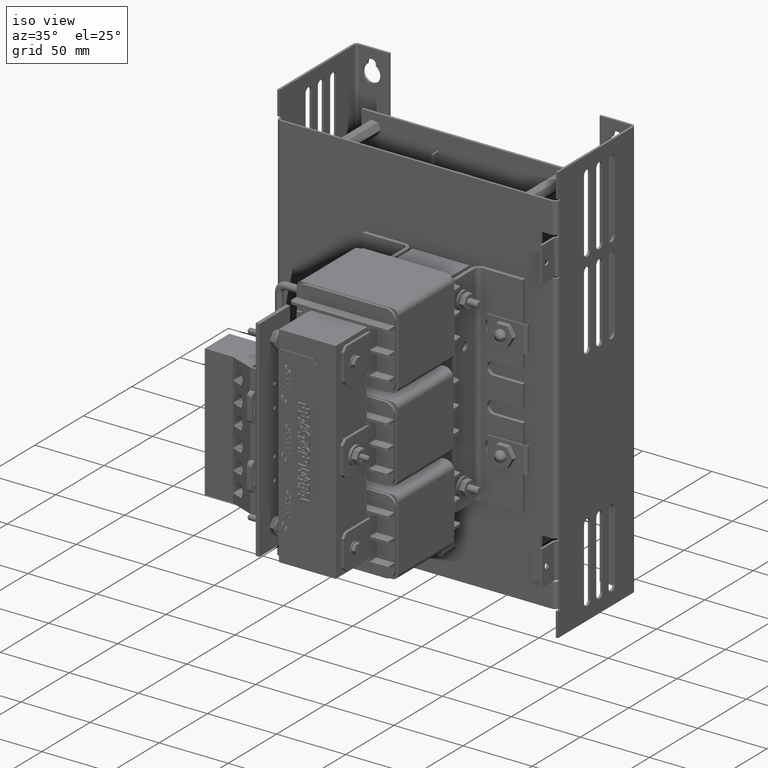
[diagram: clean part render]
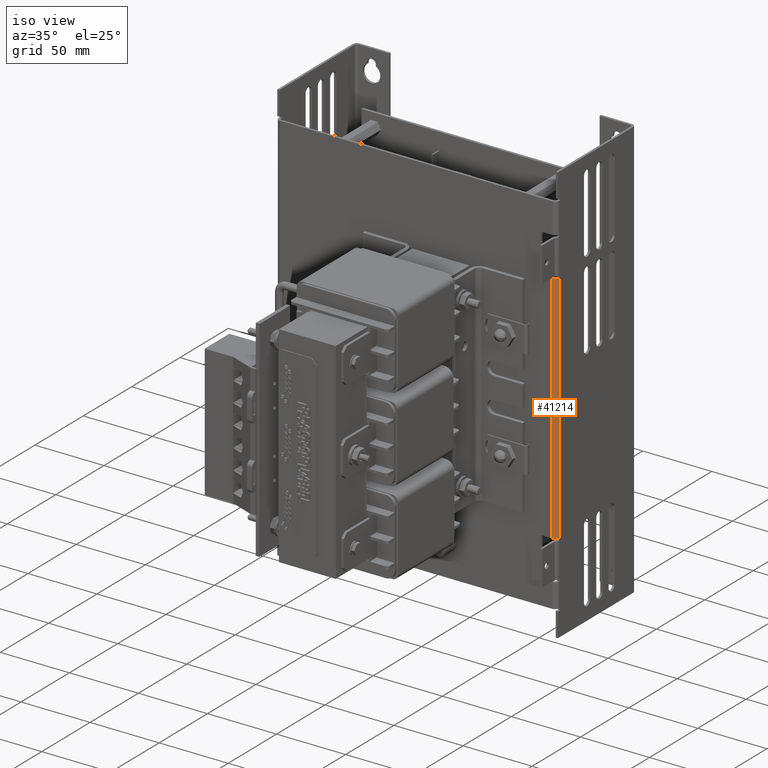
[diagram: same view with one face highlighted and labeled with its STEP entity id]
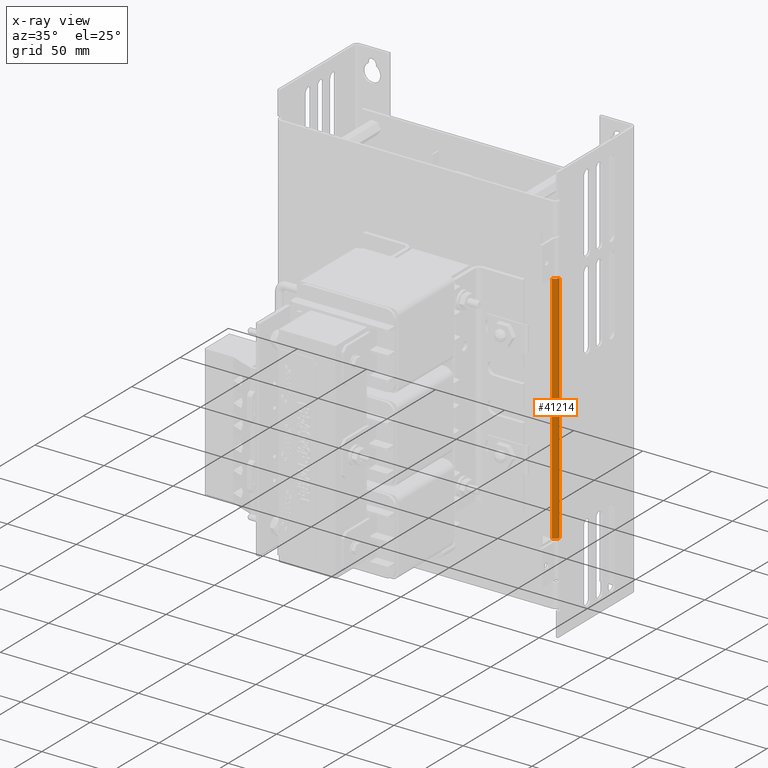
[diagram: x-ray of the same camera — body ghosted, the highlighted face saturated]
A machine part, iso view. The second image highlights one B-rep face of the part: STEP entity #41214.
The next image is the same camera in x-ray: the body ghosted, the highlighted face saturated — about 0% of this face is hidden behind the body in this view.
In plain terms, the highlighted cylindrical surface (edge-blend (fillet) strip) has radius 3.2258 mm, axis along (0, 0, 1).
Its self-contained STEP definition (entity closure, byte-faithful):
#3362=CYLINDRICAL_SURFACE('',#44401,0.126999999999999);
#4132=FACE_OUTER_BOUND('',#6486,.T.);
#6486=EDGE_LOOP('',(#29235,#29236,#29237,#29238));
#9178=LINE('',#59611,#13223);
#9286=LINE('',#59867,#13331);
#13223=VECTOR('',#48332,0.393700787401575);
#13331=VECTOR('',#48558,0.393700787401575);
#17205=CIRCLE('',#44382,0.126999999999999);
#17206=CIRCLE('',#44385,0.126999999999999);
#18562=VERTEX_POINT('',#59608);
#18563=VERTEX_POINT('',#59610);
#18651=VERTEX_POINT('',#59864);
#18652=VERTEX_POINT('',#59866);
#22632=EDGE_CURVE('',#18562,#18563,#9178,.T.);
#22760=EDGE_CURVE('',#18651,#18652,#9286,.T.);
#22777=EDGE_CURVE('',#18562,#18652,#17205,.T.);
#22782=EDGE_CURVE('',#18651,#18563,#17206,.T.);
#29235=ORIENTED_EDGE('',*,*,#22777,.T.);
#29236=ORIENTED_EDGE('',*,*,#22760,.F.);
#29237=ORIENTED_EDGE('',*,*,#22782,.T.);
#29238=ORIENTED_EDGE('',*,*,#22632,.F.);
#41214=ADVANCED_FACE('',(#4132),#3362,.T.);
#44382=AXIS2_PLACEMENT_3D('',#59898,#48598,#48599);
#44385=AXIS2_PLACEMENT_3D('',#59908,#48608,#48609);
#44401=AXIS2_PLACEMENT_3D('',#59935,#48646,#48647);
#48332=DIRECTION('',(-1.25776999125297E-18,-2.66420223382115E-16,1.));
#48558=DIRECTION('',(1.2577699912537E-18,-2.00580332902308E-16,-1.));
#48598=DIRECTION('center_axis',(0.,-3.33025279227643E-16,1.));
#48599=DIRECTION('ref_axis',(1.,-5.22156545352832E-15,1.25776999125158E-18));
#48608=DIRECTION('center_axis',(0.,3.33025279227643E-16,-1.));
#48609=DIRECTION('ref_axis',(1.,-5.22156545352832E-15,1.25776999125158E-18));
#48646=DIRECTION('center_axis',(-1.25776999125241E-18,-1.58181497524774E-16,
1.));
#48647=DIRECTION('ref_axis',(1.,-5.22156545352832E-15,1.25776999125158E-18));
#59608=CARTESIAN_POINT('',(3.25000000000004,7.873,2.559));
#59610=CARTESIAN_POINT('',(3.25000000000004,7.873,9.261));
#59611=CARTESIAN_POINT('',(3.25000000000004,7.873,8.625));
#59864=CARTESIAN_POINT('',(3.12300000000004,8.,9.261));
#59866=CARTESIAN_POINT('',(3.12300000000004,8.,2.559));
#59867=CARTESIAN_POINT('',(3.12300000000004,7.99999999999999,6.));
#59898=CARTESIAN_POINT('Origin',(3.12300000000004,7.873,2.559));
#59908=CARTESIAN_POINT('Origin',(3.12300000000004,7.873,9.261));
#59935=CARTESIAN_POINT('Origin',(3.12300000000004,7.873,6.));